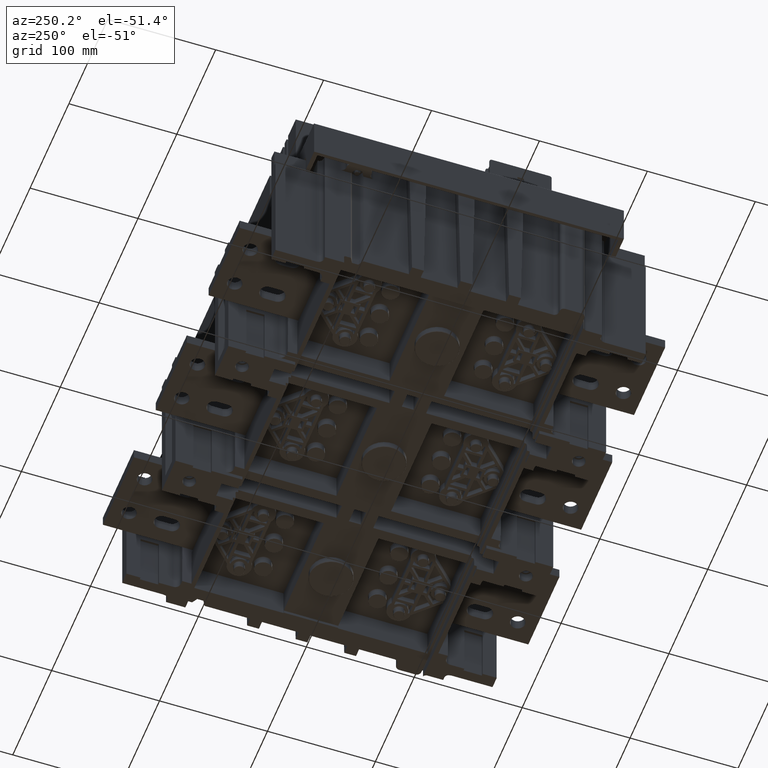
[diagram: clean part render]
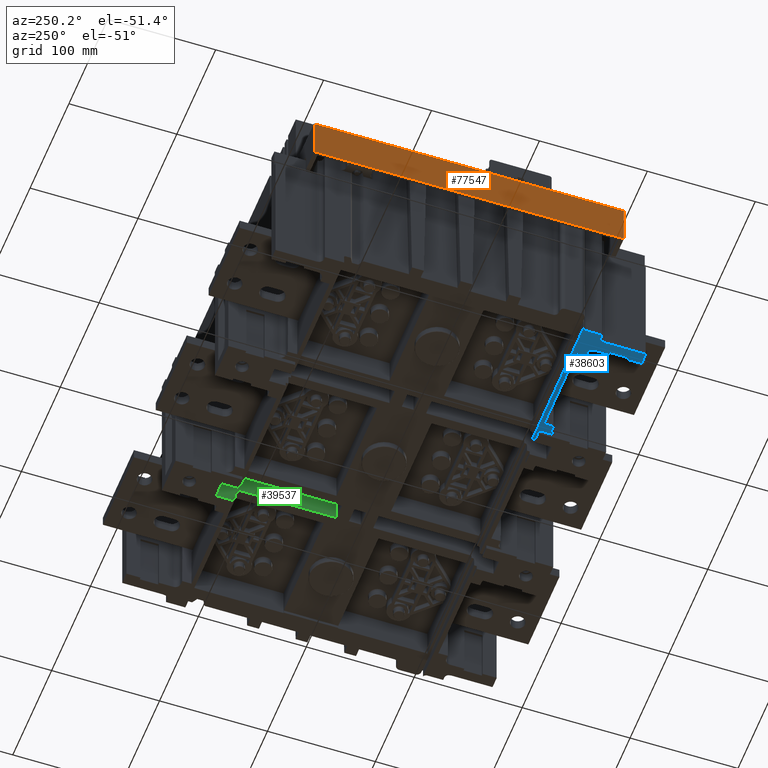
[diagram: same view with three faces highlighted in distinct colors, each labeled with its STEP entity id]
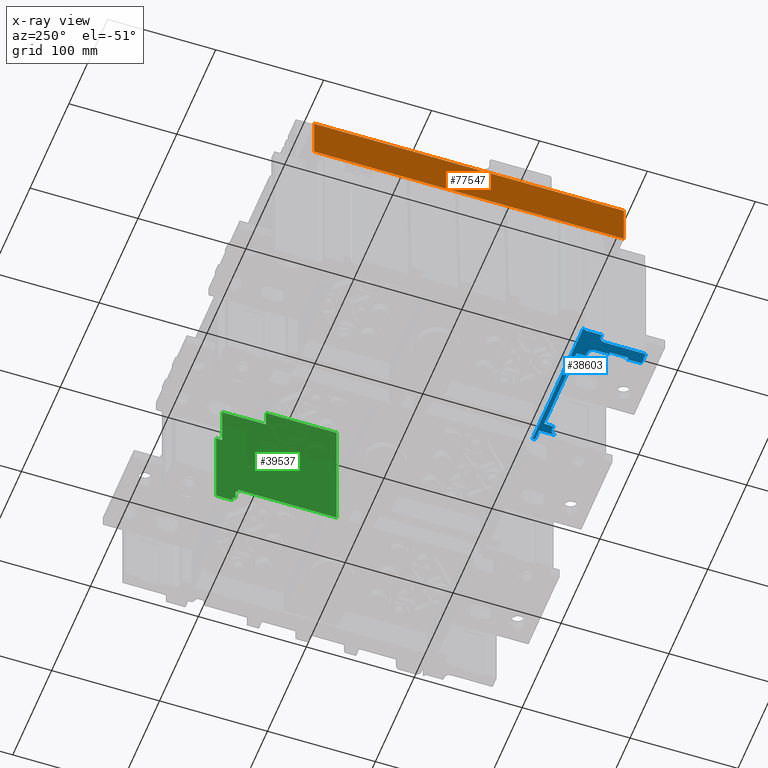
[diagram: x-ray of the same camera — body ghosted, the three highlighted faces saturated]
A machine part, auxiliary view with three faces highlighted in distinct colors.
The next image is the same camera in x-ray (body ghosted, the three faces saturated) — at least one of them is partly hidden behind the body in this view.
Their STEP definitions:

[orange] entity #77547 — the highlighted planar face has unit normal (-1, 0, 0).
#64384=DIRECTION('',(0.E0,-1.E0,0.E0));
#64385=VECTOR('',#64384,2.87E2);
#64386=CARTESIAN_POINT('',(-2.1885E2,1.435E2,0.E0));
#64387=LINE('',#64386,#64385);
#66633=DIRECTION('',(0.E0,0.E0,1.E0));
#66634=VECTOR('',#66633,3.900000000001E1);
#66635=CARTESIAN_POINT('',(-2.1885E2,-1.435E2,0.E0));
#66636=LINE('',#66635,#66634);
#67428=DIRECTION('',(0.E0,1.E0,0.E0));
#67429=VECTOR('',#67428,2.87E2);
#67430=CARTESIAN_POINT('',(-2.1885E2,-1.435E2,3.900000000001E1));
#67431=LINE('',#67430,#67429);
#67435=DIRECTION('',(0.E0,0.E0,1.E0));
#67436=VECTOR('',#67435,3.900000000001E1);
#67437=CARTESIAN_POINT('',(-2.1885E2,1.435E2,0.E0));
#67438=LINE('',#67437,#67436);
#73214=CARTESIAN_POINT('',(-2.1885E2,1.435E2,0.E0));
#73215=CARTESIAN_POINT('',(-2.1885E2,-1.435E2,0.E0));
#73216=VERTEX_POINT('',#73214);
#73217=VERTEX_POINT('',#73215);
#73230=CARTESIAN_POINT('',(-2.1885E2,-1.435E2,3.900000000001E1));
#73231=CARTESIAN_POINT('',(-2.1885E2,1.435E2,3.900000000001E1));
#73232=VERTEX_POINT('',#73230);
#73233=VERTEX_POINT('',#73231);
#77534=CARTESIAN_POINT('',(-2.1885E2,1.435E2,0.E0));
#77535=DIRECTION('',(-1.E0,0.E0,0.E0));
#77536=DIRECTION('',(0.E0,-1.E0,0.E0));
#77537=AXIS2_PLACEMENT_3D('',#77534,#77535,#77536);
#77538=PLANE('',#77537);
#77540=ORIENTED_EDGE('',*,*,#77539,.F.);
#77541=ORIENTED_EDGE('',*,*,#77262,.F.);
#77542=ORIENTED_EDGE('',*,*,#74841,.F.);
#77544=ORIENTED_EDGE('',*,*,#77543,.T.);
#77545=EDGE_LOOP('',(#77540,#77541,#77542,#77544));
#77546=FACE_OUTER_BOUND('',#77545,.F.);
#74841=EDGE_CURVE('',#73216,#73217,#64387,.T.);
#77262=EDGE_CURVE('',#73217,#73232,#66636,.T.);
#77539=EDGE_CURVE('',#73232,#73233,#67431,.T.);
#77543=EDGE_CURVE('',#73216,#73233,#67438,.T.);
#77547=ADVANCED_FACE('',(#77546),#77538,.T.);

[blue] entity #38603 — the highlighted planar face has unit normal (0, 0, 1).
#2389=DIRECTION('',(0.E0,1.E0,0.E0));
#2390=VECTOR('',#2389,1.280000000001E1);
#2391=CARTESIAN_POINT('',(4.E0,-1.713E2,1.864E2));
#2392=LINE('',#2391,#2390);
#2456=DIRECTION('',(0.E0,1.E0,0.E0));
#2457=VECTOR('',#2456,1.339999999999E1);
#2458=CARTESIAN_POINT('',(4.E0,-1.415E2,1.864E2));
#2459=LINE('',#2458,#2457);
#2561=DIRECTION('',(0.E0,0.E0,-1.E0));
#2562=VECTOR('',#2561,2.E0);
#2563=CARTESIAN_POINT('',(4.E0,-1.585E2,1.884E2));
#2564=LINE('',#2563,#2562);
#2568=DIRECTION('',(0.E0,-1.E0,0.E0));
#2569=VECTOR('',#2568,1.7E1);
#2570=CARTESIAN_POINT('',(4.E0,-1.415E2,1.884E2));
#2571=LINE('',#2570,#2569);
#2575=DIRECTION('',(0.E0,0.E0,1.E0));
#2576=VECTOR('',#2575,2.E0);
#2577=CARTESIAN_POINT('',(4.E0,-1.415E2,1.864E2));
#2578=LINE('',#2577,#2576);
#2582=DIRECTION('',(0.E0,1.E0,0.E0));
#2583=VECTOR('',#2582,1.51E1);
#2584=CARTESIAN_POINT('',(4.E0,-1.281E2,8.56E1));
#2585=LINE('',#2584,#2583);
#2589=DIRECTION('',(0.E0,0.E0,1.E0));
#2590=VECTOR('',#2589,1.06E1);
#2591=CARTESIAN_POINT('',(4.E0,-1.13E2,7.5E1));
#2592=LINE('',#2591,#2590);
#2596=DIRECTION('',(0.E0,-1.E0,0.E0));
#2597=VECTOR('',#2596,2.5E0);
#2598=CARTESIAN_POINT('',(4.E0,-1.105E2,7.5E1));
#2599=LINE('',#2598,#2597);
#2603=CARTESIAN_POINT('',(4.E0,-1.14E2,2.0845E2));
#2604=DIRECTION('',(-1.E0,0.E0,0.E0));
#2605=DIRECTION('',(0.E0,8.749999999996E-1,-4.841229182767E-1));
#2606=AXIS2_PLACEMENT_3D('',#2603,#2604,#2605);
#7195=DIRECTION('',(0.E0,1.E0,0.E0));
#7196=VECTOR('',#7195,8.7E0);
#7197=CARTESIAN_POINT('',(4.E0,-1.231E2,1.777187561035E2));
#7198=LINE('',#7197,#7196);
#7216=DIRECTION('',(0.E0,0.E0,-1.E0));
#7217=VECTOR('',#7216,3.681243896487E0);
#7218=CARTESIAN_POINT('',(4.E0,-1.231E2,1.814E2));
#7219=LINE('',#7218,#7217);
#7230=DIRECTION('',(0.E0,0.E0,-1.E0));
#7231=VECTOR('',#7230,3.681243896478E0);
#7232=CARTESIAN_POINT('',(4.E0,-1.231E2,9.428124389648E1));
#7233=LINE('',#7232,#7231);
#7244=CARTESIAN_POINT('',(4.E0,-1.281E2,1.814E2));
#7245=DIRECTION('',(1.E0,0.E0,0.E0));
#7246=DIRECTION('',(0.E0,1.E0,0.E0));
#7247=AXIS2_PLACEMENT_3D('',#7244,#7245,#7246);
#7259=CARTESIAN_POINT('',(4.E0,-1.281E2,9.06E1));
#7260=DIRECTION('',(1.E0,0.E0,0.E0));
#7261=DIRECTION('',(0.E0,7.389644451899E-14,-1.E0));
#7262=AXIS2_PLACEMENT_3D('',#7259,#7260,#7261);
#13916=DIRECTION('',(0.E0,0.E0,1.E0));
#13917=VECTOR('',#13916,1.315135083269E2);
#13918=CARTESIAN_POINT('',(4.E0,-1.105E2,7.5E1));
#13919=LINE('',#13918,#13917);
#14162=DIRECTION('',(0.E0,-8.386705679473E-1,-5.446390350122E-1));
#14163=VECTOR('',#14162,4.222980455209E-1);
#14164=CARTESIAN_POINT('',(4.E0,-1.326793232391E2,1.9761E2));
#14165=LINE('',#14164,#14163);
#14191=DIRECTION('',(0.E0,-1.E0,0.E0));
#14192=VECTOR('',#14191,2.293232390825E-1);
#14193=CARTESIAN_POINT('',(4.E0,-1.3245E2,1.9761E2));
#14194=LINE('',#14193,#14192);
#14216=CARTESIAN_POINT('',(4.E0,-1.3245E2,2.0161E2));
#14217=DIRECTION('',(1.E0,0.E0,0.E0));
#14218=DIRECTION('',(0.E0,-1.136868377220E-13,-1.E0));
#14219=AXIS2_PLACEMENT_3D('',#14216,#14217,#14218);
#14231=DIRECTION('',(0.E0,0.E0,-1.E0));
#14232=VECTOR('',#14231,2.540000000027E0);
#14233=CARTESIAN_POINT('',(4.E0,-1.2845E2,2.0415E2));
#14234=LINE('',#14233,#14232);
#14245=CARTESIAN_POINT('',(4.E0,-1.2815E2,2.0415E2));
#14246=DIRECTION('',(1.E0,0.E0,0.E0));
#14247=DIRECTION('',(0.E0,-6.631732200733E-13,1.E0));
#14248=AXIS2_PLACEMENT_3D('',#14245,#14246,#14247);
#14260=DIRECTION('',(0.E0,-1.E0,0.E0));
#14261=VECTOR('',#14260,1.415000000003E1);
#14262=CARTESIAN_POINT('',(4.E0,-1.14E2,2.0445E2));
#14263=LINE('',#14262,#14261);
#17239=DIRECTION('',(0.E0,0.E0,-1.E0));
#17240=VECTOR('',#17239,1.038000000003E1);
#17241=CARTESIAN_POINT('',(4.E0,-1.716E2,1.9708E2));
#17242=LINE('',#17241,#17240);
#17253=CARTESIAN_POINT('',(4.E0,-1.713E2,1.867E2));
#17254=DIRECTION('',(1.E0,0.E0,0.E0));
#17255=DIRECTION('',(0.E0,-1.E0,0.E0));
#17256=AXIS2_PLACEMENT_3D('',#17253,#17254,#17255);
#17276=CARTESIAN_POINT('',(4.E0,-1.713E2,1.9708E2));
#17277=DIRECTION('',(1.E0,0.E0,0.E0));
#17278=DIRECTION('',(0.E0,0.E0,1.E0));
#17279=AXIS2_PLACEMENT_3D('',#17276,#17277,#17278);
#17291=DIRECTION('',(0.E0,-1.E0,0.E0));
#17292=VECTOR('',#17291,3.826650781926E1);
#17293=CARTESIAN_POINT('',(4.E0,-1.330334921807E2,1.9738E2));
#17294=LINE('',#17293,#17292);
#21824=DIRECTION('',(0.E0,0.E0,-1.E0));
#21825=VECTOR('',#21824,8.343751220702E1);
#21826=CARTESIAN_POINT('',(4.E0,-1.144E2,1.777187561035E2));
#21827=LINE('',#21826,#21825);
#21845=DIRECTION('',(0.E0,1.E0,0.E0));
#21846=VECTOR('',#21845,8.7E0);
#21847=CARTESIAN_POINT('',(4.E0,-1.231E2,9.428124389648E1));
#21848=LINE('',#21847,#21846);
#32118=CARTESIAN_POINT('',(4.E0,-1.105E2,2.065135083269E2));
#32120=VERTEX_POINT('',#32118);
#35080=CARTESIAN_POINT('',(4.E0,-1.14E2,2.0445E2));
#35081=CARTESIAN_POINT('',(4.E0,-1.2815E2,2.0445E2));
#35082=VERTEX_POINT('',#35080);
#35083=VERTEX_POINT('',#35081);
#35084=CARTESIAN_POINT('',(4.E0,-1.2845E2,2.0415E2));
#35085=VERTEX_POINT('',#35084);
#35086=CARTESIAN_POINT('',(4.E0,-1.2845E2,2.0161E2));
#35087=VERTEX_POINT('',#35086);
#35088=CARTESIAN_POINT('',(4.E0,-1.3245E2,1.9761E2));
#35089=VERTEX_POINT('',#35088);
#35090=CARTESIAN_POINT('',(4.E0,-1.326793232391E2,1.9761E2));
#35091=VERTEX_POINT('',#35090);
#35092=CARTESIAN_POINT('',(4.E0,-1.330334921807E2,1.9738E2));
#35093=VERTEX_POINT('',#35092);
#35094=CARTESIAN_POINT('',(4.E0,-1.713E2,1.9738E2));
#35095=VERTEX_POINT('',#35094);
#35096=CARTESIAN_POINT('',(4.E0,-1.716E2,1.9708E2));
#35097=VERTEX_POINT('',#35096);
#35098=CARTESIAN_POINT('',(4.E0,-1.716E2,1.867E2));
#35099=VERTEX_POINT('',#35098);
#35100=CARTESIAN_POINT('',(4.E0,-1.713E2,1.864E2));
#35101=VERTEX_POINT('',#35100);
#35102=CARTESIAN_POINT('',(4.E0,-1.231E2,1.814E2));
#35103=CARTESIAN_POINT('',(4.E0,-1.281E2,1.864E2));
#35104=VERTEX_POINT('',#35102);
#35105=VERTEX_POINT('',#35103);
#35106=CARTESIAN_POINT('',(4.E0,-1.231E2,1.777187561035E2));
#35107=VERTEX_POINT('',#35106);
#35108=CARTESIAN_POINT('',(4.E0,-1.231E2,9.428124389648E1));
#35109=CARTESIAN_POINT('',(4.E0,-1.231E2,9.06E1));
#35110=VERTEX_POINT('',#35108);
#35111=VERTEX_POINT('',#35109);
#35112=CARTESIAN_POINT('',(4.E0,-1.281E2,8.56E1));
#35113=VERTEX_POINT('',#35112);
#35258=CARTESIAN_POINT('',(4.E0,-1.13E2,8.56E1));
#35259=VERTEX_POINT('',#35258);
#35296=CARTESIAN_POINT('',(4.E0,-1.144E2,1.777187561035E2));
#35297=VERTEX_POINT('',#35296);
#35298=CARTESIAN_POINT('',(4.E0,-1.144E2,9.428124389648E1));
#35299=VERTEX_POINT('',#35298);
#35490=CARTESIAN_POINT('',(4.E0,-1.13E2,7.5E1));
#35491=VERTEX_POINT('',#35490);
#35494=CARTESIAN_POINT('',(4.E0,-1.105E2,7.5E1));
#35495=VERTEX_POINT('',#35494);
#36676=CARTESIAN_POINT('',(4.E0,-1.585E2,1.864E2));
#36677=VERTEX_POINT('',#36676);
#36678=CARTESIAN_POINT('',(4.E0,-1.415E2,1.864E2));
#36679=VERTEX_POINT('',#36678);
#36740=CARTESIAN_POINT('',(4.E0,-1.585E2,1.884E2));
#36741=VERTEX_POINT('',#36740);
#36754=CARTESIAN_POINT('',(4.E0,-1.415E2,1.884E2));
#36755=VERTEX_POINT('',#36754);
#38546=CARTESIAN_POINT('',(4.E0,-1.13E2,-2.5E2));
#38547=DIRECTION('',(1.E0,0.E0,0.E0));
#38548=DIRECTION('',(0.E0,1.E0,0.E0));
#38549=AXIS2_PLACEMENT_3D('',#38546,#38547,#38548);
#38550=PLANE('',#38549);
#38551=ORIENTED_EDGE('',*,*,#38455,.F.);
#38552=ORIENTED_EDGE('',*,*,#38465,.F.);
#38554=ORIENTED_EDGE('',*,*,#38553,.F.);
#38555=ORIENTED_EDGE('',*,*,#38439,.T.);
#38557=ORIENTED_EDGE('',*,*,#38556,.F.);
#38559=ORIENTED_EDGE('',*,*,#38558,.T.);
#38561=ORIENTED_EDGE('',*,*,#38560,.T.);
#38563=ORIENTED_EDGE('',*,*,#38562,.T.);
#38565=ORIENTED_EDGE('',*,*,#38564,.F.);
#38567=ORIENTED_EDGE('',*,*,#38566,.T.);
#38569=ORIENTED_EDGE('',*,*,#38568,.F.);
#38571=ORIENTED_EDGE('',*,*,#38570,.T.);
#38573=ORIENTED_EDGE('',*,*,#38572,.F.);
#38575=ORIENTED_EDGE('',*,*,#38574,.F.);
#38577=ORIENTED_EDGE('',*,*,#38576,.T.);
#38579=ORIENTED_EDGE('',*,*,#38578,.T.);
#38581=ORIENTED_EDGE('',*,*,#38580,.T.);
#38583=ORIENTED_EDGE('',*,*,#38582,.T.);
#38585=ORIENTED_EDGE('',*,*,#38584,.T.);
#38587=ORIENTED_EDGE('',*,*,#38586,.F.);
#38589=ORIENTED_EDGE('',*,*,#38588,.T.);
#38591=ORIENTED_EDGE('',*,*,#38590,.T.);
#38593=ORIENTED_EDGE('',*,*,#38592,.T.);
#38595=ORIENTED_EDGE('',*,*,#38594,.T.);
#38597=ORIENTED_EDGE('',*,*,#38596,.T.);
#38599=ORIENTED_EDGE('',*,*,#38598,.T.);
#38600=ORIENTED_EDGE('',*,*,#38415,.T.);
#38601=EDGE_LOOP('',(#38551,#38552,#38554,#38555,#38557,#38559,#38561,#38563,
#38565,#38567,#38569,#38571,#38573,#38575,#38577,#38579,#38581,#38583,#38585,
#38587,#38589,#38591,#38593,#38595,#38597,#38599,#38600));
#38602=FACE_OUTER_BOUND('',#38601,.F.);
#2607=CIRCLE('',#2606,3.999999999987E0);
#7248=CIRCLE('',#7247,5.000000000009E0);
#7263=CIRCLE('',#7262,5.000000000004E0);
#14220=CIRCLE('',#14219,3.999999999987E0);
#14249=CIRCLE('',#14248,2.999999999862E-1);
#17257=CIRCLE('',#17256,2.999999999861E-1);
#17280=CIRCLE('',#17279,2.999999999862E-1);
#38415=EDGE_CURVE('',#35101,#36677,#2392,.T.);
#38439=EDGE_CURVE('',#36679,#35105,#2459,.T.);
#38455=EDGE_CURVE('',#36741,#36677,#2564,.T.);
#38465=EDGE_CURVE('',#36755,#36741,#2571,.T.);
#38553=EDGE_CURVE('',#36679,#36755,#2578,.T.);
#38556=EDGE_CURVE('',#35104,#35105,#7248,.T.);
#38558=EDGE_CURVE('',#35104,#35107,#7219,.T.);
#38560=EDGE_CURVE('',#35107,#35297,#7198,.T.);
#38562=EDGE_CURVE('',#35297,#35299,#21827,.T.);
#38564=EDGE_CURVE('',#35110,#35299,#21848,.T.);
#38566=EDGE_CURVE('',#35110,#35111,#7233,.T.);
#38568=EDGE_CURVE('',#35113,#35111,#7263,.T.);
#38570=EDGE_CURVE('',#35113,#35259,#2585,.T.);
#38572=EDGE_CURVE('',#35491,#35259,#2592,.T.);
#38574=EDGE_CURVE('',#35495,#35491,#2599,.T.);
#38576=EDGE_CURVE('',#35495,#32120,#13919,.T.);
#38578=EDGE_CURVE('',#32120,#35082,#2607,.T.);
#38580=EDGE_CURVE('',#35082,#35083,#14263,.T.);
#38582=EDGE_CURVE('',#35083,#35085,#14249,.T.);
#38584=EDGE_CURVE('',#35085,#35087,#14234,.T.);
#38586=EDGE_CURVE('',#35089,#35087,#14220,.T.);
#38588=EDGE_CURVE('',#35089,#35091,#14194,.T.);
#38590=EDGE_CURVE('',#35091,#35093,#14165,.T.);
#38592=EDGE_CURVE('',#35093,#35095,#17294,.T.);
#38594=EDGE_CURVE('',#35095,#35097,#17280,.T.);
#38596=EDGE_CURVE('',#35097,#35099,#17242,.T.);
#38598=EDGE_CURVE('',#35099,#35101,#17257,.T.);
#38603=ADVANCED_FACE('',(#38602),#38550,.F.);

[green] entity #39537 — the highlighted planar face has unit normal (1, 0, 0).
#200=DIRECTION('',(0.E0,1.E0,0.E0));
#201=VECTOR('',#200,1.520000000001E1);
#202=CARTESIAN_POINT('',(0.E0,1.133E2,-7.5E1));
#203=LINE('',#202,#201);
#2667=DIRECTION('',(0.E0,1.E0,0.E0));
#2668=VECTOR('',#2667,2.5E0);
#2669=CARTESIAN_POINT('',(4.E0,1.105E2,-7.5E1));
#2670=LINE('',#2669,#2668);
#3480=DIRECTION('',(0.E0,-1.E0,0.E0));
#3481=VECTOR('',#3480,9.500000000006E-1);
#3482=CARTESIAN_POINT('',(1.35E1,1.09E2,-7.5E1));
#3483=LINE('',#3482,#3481);
#3660=DIRECTION('',(1.E0,0.E0,0.E0));
#3661=VECTOR('',#3660,3.E0);
#3662=CARTESIAN_POINT('',(1.35E1,1.0805E2,-7.5E1));
#3663=LINE('',#3662,#3661);
#3931=DIRECTION('',(0.E0,1.E0,0.E0));
#3932=VECTOR('',#3931,9.105E1);
#3933=CARTESIAN_POINT('',(1.65E1,1.7E1,-7.5E1));
#3934=LINE('',#3933,#3932);
#3938=DIRECTION('',(1.E0,0.E0,0.E0));
#3939=VECTOR('',#3938,1.185E2);
#3940=CARTESIAN_POINT('',(1.65E1,1.7E1,-7.5E1));
#3941=LINE('',#3940,#3939);
#4014=CARTESIAN_POINT('',(1.2E1,1.09E2,-7.5E1));
#4015=DIRECTION('',(0.E0,0.E0,1.E0));
#4016=DIRECTION('',(1.E0,0.E0,0.E0));
#4017=AXIS2_PLACEMENT_3D('',#4014,#4015,#4016);
#4072=DIRECTION('',(1.E0,0.E0,0.E0));
#4073=VECTOR('',#4072,1.6E1);
#4074=CARTESIAN_POINT('',(1.19E2,8.25E1,-7.5E1));
#4075=LINE('',#4074,#4073);
#4086=DIRECTION('',(0.E0,1.E0,0.E0));
#4087=VECTOR('',#4086,4.05E1);
#4088=CARTESIAN_POINT('',(1.19E2,8.25E1,-7.5E1));
#4089=LINE('',#4088,#4087);
#4100=DIRECTION('',(1.E0,0.E0,0.E0));
#4101=VECTOR('',#4100,3.9E1);
#4102=CARTESIAN_POINT('',(8.E1,1.23E2,-7.5E1));
#4103=LINE('',#4102,#4101);
#4121=DIRECTION('',(0.E0,1.E0,0.E0));
#4122=VECTOR('',#4121,5.5E0);
#4123=CARTESIAN_POINT('',(8.E1,1.23E2,-7.5E1));
#4124=LINE('',#4123,#4122);
#4317=DIRECTION('',(1.E0,0.E0,0.E0));
#4318=VECTOR('',#4317,8.E1);
#4319=CARTESIAN_POINT('',(0.E0,1.285E2,-7.5E1));
#4320=LINE('',#4319,#4318);
#11933=CARTESIAN_POINT('',(2.999999999931E-1,1.133E2,-7.5E1));
#11934=DIRECTION('',(0.E0,0.E0,1.E0));
#11935=DIRECTION('',(-1.E0,-2.036889175892E-12,0.E0));
#11936=AXIS2_PLACEMENT_3D('',#11933,#11934,#11935);
#12025=DIRECTION('',(-1.E0,0.E0,0.E0));
#12026=VECTOR('',#12025,3.700000000007E0);
#12027=CARTESIAN_POINT('',(4.E0,1.13E2,-7.5E1));
#12028=LINE('',#12027,#12026);
#12470=DIRECTION('',(-1.E0,0.E0,0.E0));
#12471=VECTOR('',#12470,8.000000000001E0);
#12472=CARTESIAN_POINT('',(1.2E1,1.105E2,-7.5E1));
#12473=LINE('',#12472,#12471);
#29643=DIRECTION('',(0.E0,1.E0,0.E0));
#29644=VECTOR('',#29643,6.55E1);
#29645=CARTESIAN_POINT('',(1.35E2,1.7E1,-7.5E1));
#29646=LINE('',#29645,#29644);
#35312=CARTESIAN_POINT('',(1.35E2,1.7E1,-7.5E1));
#35313=VERTEX_POINT('',#35312);
#35314=CARTESIAN_POINT('',(1.35E2,8.25E1,-7.5E1));
#35315=VERTEX_POINT('',#35314);
#35317=CARTESIAN_POINT('',(1.65E1,1.7E1,-7.5E1));
#35319=VERTEX_POINT('',#35317);
#35356=CARTESIAN_POINT('',(0.E0,1.133E2,-7.5E1));
#35357=CARTESIAN_POINT('',(0.E0,1.285E2,-7.5E1));
#35358=VERTEX_POINT('',#35356);
#35359=VERTEX_POINT('',#35357);
#35364=CARTESIAN_POINT('',(4.E0,1.105E2,-7.5E1));
#35365=CARTESIAN_POINT('',(4.E0,1.13E2,-7.5E1));
#35366=VERTEX_POINT('',#35364);
#35367=VERTEX_POINT('',#35365);
#35372=CARTESIAN_POINT('',(1.35E1,1.09E2,-7.5E1));
#35373=CARTESIAN_POINT('',(1.35E1,1.0805E2,-7.5E1));
#35374=VERTEX_POINT('',#35372);
#35375=VERTEX_POINT('',#35373);
#35380=CARTESIAN_POINT('',(1.2E1,1.105E2,-7.5E1));
#35381=VERTEX_POINT('',#35380);
#35384=CARTESIAN_POINT('',(2.999999999931E-1,1.13E2,-7.5E1));
#35385=VERTEX_POINT('',#35384);
#35388=CARTESIAN_POINT('',(1.65E1,1.0805E2,-7.5E1));
#35389=VERTEX_POINT('',#35388);
#35392=CARTESIAN_POINT('',(8.E1,1.23E2,-7.5E1));
#35393=CARTESIAN_POINT('',(8.E1,1.285E2,-7.5E1));
#35394=VERTEX_POINT('',#35392);
#35395=VERTEX_POINT('',#35393);
#35401=CARTESIAN_POINT('',(1.19E2,1.23E2,-7.5E1));
#35403=VERTEX_POINT('',#35401);
#35404=CARTESIAN_POINT('',(1.19E2,8.25E1,-7.5E1));
#35406=VERTEX_POINT('',#35404);
#39503=CARTESIAN_POINT('',(0.E0,1.7E1,-7.5E1));
#39504=DIRECTION('',(0.E0,0.E0,-1.E0));
#39505=DIRECTION('',(0.E0,1.E0,0.E0));
#39506=AXIS2_PLACEMENT_3D('',#39503,#39504,#39505);
#39507=PLANE('',#39506);
#39508=ORIENTED_EDGE('',*,*,#38845,.T.);
#39509=ORIENTED_EDGE('',*,*,#39404,.F.);
#39510=ORIENTED_EDGE('',*,*,#39258,.F.);
#39512=ORIENTED_EDGE('',*,*,#39511,.T.);
#39514=ORIENTED_EDGE('',*,*,#39513,.T.);
#39515=ORIENTED_EDGE('',*,*,#38691,.T.);
#39517=ORIENTED_EDGE('',*,*,#39516,.T.);
#39519=ORIENTED_EDGE('',*,*,#39518,.F.);
#39520=ORIENTED_EDGE('',*,*,#37477,.T.);
#39522=ORIENTED_EDGE('',*,*,#39521,.T.);
#39524=ORIENTED_EDGE('',*,*,#39523,.F.);
#39526=ORIENTED_EDGE('',*,*,#39525,.T.);
#39528=ORIENTED_EDGE('',*,*,#39527,.F.);
#39530=ORIENTED_EDGE('',*,*,#39529,.T.);
#39532=ORIENTED_EDGE('',*,*,#39531,.F.);
#39534=ORIENTED_EDGE('',*,*,#39533,.F.);
#39535=EDGE_LOOP('',(#39508,#39509,#39510,#39512,#39514,#39515,#39517,#39519,
#39520,#39522,#39524,#39526,#39528,#39530,#39532,#39534));
#39536=FACE_OUTER_BOUND('',#39535,.F.);
#4018=CIRCLE('',#4017,1.499999999999E0);
#11937=CIRCLE('',#11936,2.999999999931E-1);
#37477=EDGE_CURVE('',#35358,#35359,#203,.T.);
#38691=EDGE_CURVE('',#35366,#35367,#2670,.T.);
#38845=EDGE_CURVE('',#35319,#35389,#3934,.T.);
#39258=EDGE_CURVE('',#35374,#35375,#3483,.T.);
#39404=EDGE_CURVE('',#35375,#35389,#3663,.T.);
#39511=EDGE_CURVE('',#35374,#35381,#4018,.T.);
#39513=EDGE_CURVE('',#35381,#35366,#12473,.T.);
#39516=EDGE_CURVE('',#35367,#35385,#12028,.T.);
#39518=EDGE_CURVE('',#35358,#35385,#11937,.T.);
#39521=EDGE_CURVE('',#35359,#35395,#4320,.T.);
#39523=EDGE_CURVE('',#35394,#35395,#4124,.T.);
#39525=EDGE_CURVE('',#35394,#35403,#4103,.T.);
#39527=EDGE_CURVE('',#35406,#35403,#4089,.T.);
#39529=EDGE_CURVE('',#35406,#35315,#4075,.T.);
#39531=EDGE_CURVE('',#35313,#35315,#29646,.T.);
#39533=EDGE_CURVE('',#35319,#35313,#3941,.T.);
#39537=ADVANCED_FACE('',(#39536),#39507,.F.);